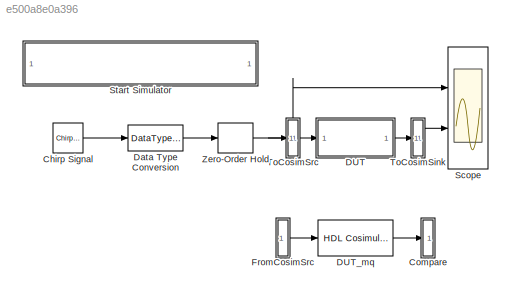
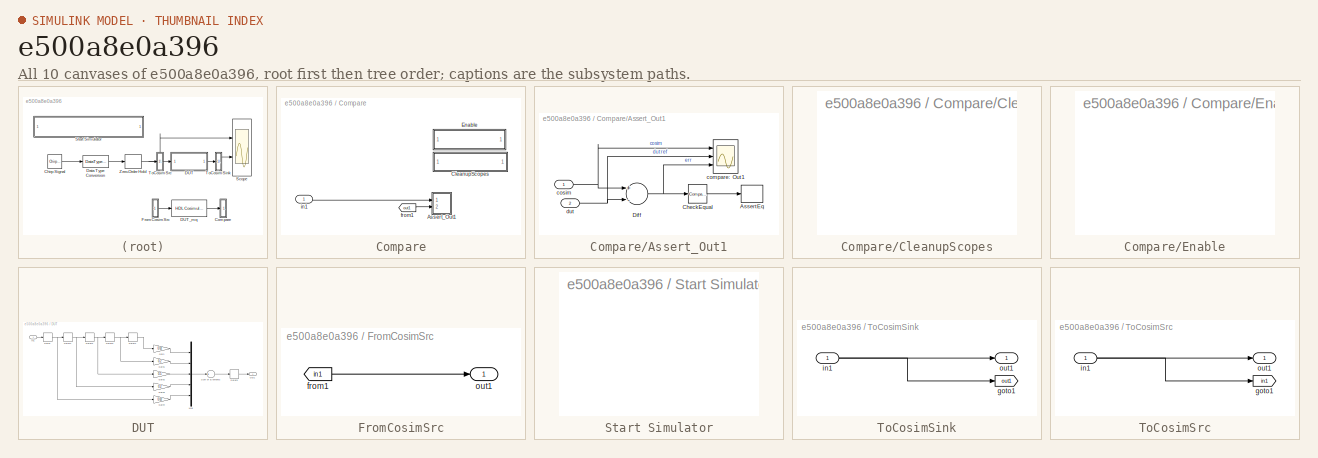
[diagram: thumbnail index - all 10 canvases of the model, root first then tree order]
MODEL slx_e500a8e0a396
KIND model
CONFIG AbsTol = auto
CONFIG FixedStep = auto
CONFIG MaxStep = auto
CONFIG MinStep = auto
CONFIG RelTol = 1e-3
CONFIG SampleTimeConstraint = Unconstrained
CONFIG Solver = ode45
CONFIG SolverMode = Auto
CONFIG SolverName = ode45
CONFIG StartTime = 0.0
CONFIG StopTime = 10.0
BLOCK [Reference] Chirp Signal  REF=simulink/Sources/Chirp Signal
  Ports = [0, 1]
  SourceBlock = simulink/Sources/Chirp Signal
  SourceType = chirp
BLOCK [SubSystem] Compare
  Ports = [1]
  RequestExecContextInheritance = off
  Variant = off
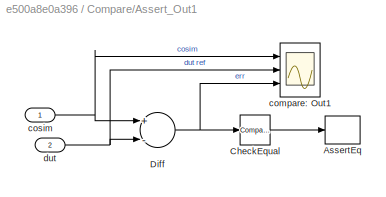
BLOCK [SubSystem] Compare/Assert_Out1
  Ports = [2]
  RequestExecContextInheritance = off
  Variant = off
BLOCK [Assertion] Compare/Assert_Out1/AssertEq
  StopWhenAssertionFail = off
BLOCK [Reference] Compare/Assert_Out1/CheckEqual  REF=simulink/Logic and Bit
Operations/Compare
To Zero
  Ports = [1, 1]
  SourceBlock = simulink/Logic and Bit\nOperations/Compare\nTo Zero
  SourceType = Compare To Zero
BLOCK [Sum] Compare/Assert_Out1/Diff
  InputSameDT = off
  Inputs = +-
  OutDataTypeStr = Inherit: Inherit via internal rule
  Ports = [2, 1]
  SaturateOnIntegerOverflow = off
BLOCK [Scope] Compare/Assert_Out1/compare: Out1
  NumInputPorts = 3
  Ports = [3]
  ScopeSpecificationString = Simulink.scopes.TimeScopeBlockCfg('CurrentConfiguration', extmgr.ConfigurationSet(extmgr.Configuration('Core','General UI',true),extmgr.Configuration('Core','Source UI',true),extmgr.Configuration('Sources','WiredSimulink',true,'DataLoggingSaveFormat','StructureWithTime','DataLoggingDecimation','1','DataLoggingDecimateData',true),extmgr.Configuration('Visuals','Time Domain',true,'SerializedDisplays...<+2985ch>
BLOCK [Inport] Compare/Assert_Out1/cosim
  IconDisplay = Port number
BLOCK [Inport] Compare/Assert_Out1/dut
  IconDisplay = Port number
  Port = 2
BLOCK [SubSystem] Compare/CleanupScopes
  OpenFcn = blkName = gcb;\nidx = regexp(blkName, '/CleanupScopes$', 'once');\nblkParent = blkName(1:idx-1);\nblks=find_system(blkParent, 'blocktype', 'Scope');\ne = get_param(blks{1}, 'Open');\nif strcmp(e, 'on'), f= 'off'; else f = 'on'; end\nfor ii=1:length(blks), set_param(blks{ii}, 'Open', f); end; drawnow;
  Ports = []
  RequestExecContextInheritance = off
  Variant = off
BLOCK [SubSystem] Compare/Enable
  OpenFcn = blkName = gcb;\nidx = regexp(blkName, '/Enable$', 'once');\nblkParent = blkName(1:idx-1);\nblks=find_system(blkParent, 'blocktype', 'Assertion');\ne = get_param(blks{1}, 'Enabled');\nif strcmp(e, 'on'), f= 'off';, else, f = 'on';, end\nfor ii=1:length(blks), set_param(blks{ii}, 'Enabled', f);, end\ndispMsg = sprintf('disp([''Double click to turn %s \\n all Assertions''])', upper(e));\nset_param(gcb, 'Mask...<+19ch>
  Ports = []
  RequestExecContextInheritance = off
  Variant = off
BLOCK [From] Compare/from1
  GotoTag = out1
  TagVisibility = global
BLOCK [Inport] Compare/in1
  IconDisplay = Port number
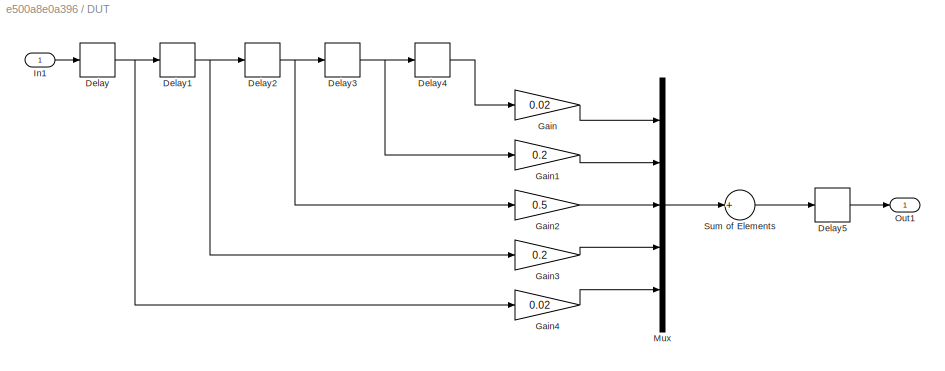
BLOCK [SubSystem] DUT
  Ports = [1, 1]
  RequestExecContextInheritance = off
  Variant = off
BLOCK [Delay] DUT/Delay
  DelayLength = 1
  InputPortMap = u0
  Ports = [1, 1]
BLOCK [Delay] DUT/Delay1
  DelayLength = 1
  InputPortMap = u0
  Ports = [1, 1]
BLOCK [Delay] DUT/Delay2
  DelayLength = 1
  InputPortMap = u0
  Ports = [1, 1]
BLOCK [Delay] DUT/Delay3
  DelayLength = 1
  InputPortMap = u0
  Ports = [1, 1]
BLOCK [Delay] DUT/Delay4
  DelayLength = 1
  InputPortMap = u0
  Ports = [1, 1]
BLOCK [Delay] DUT/Delay5
  DelayLength = 1
  InputPortMap = u0
  Ports = [1, 1]
BLOCK [Gain] DUT/Gain
  Gain = 0.02
  ParamDataTypeStr = Inherit: Inherit via internal rule
  SaturateOnIntegerOverflow = off
BLOCK [Gain] DUT/Gain1
  Gain = 0.2
  ParamDataTypeStr = Inherit: Inherit via internal rule
  SaturateOnIntegerOverflow = off
BLOCK [Gain] DUT/Gain2
  Gain = 0.5
  ParamDataTypeStr = Inherit: Inherit via internal rule
  SaturateOnIntegerOverflow = off
BLOCK [Gain] DUT/Gain3
  Gain = 0.2
  ParamDataTypeStr = Inherit: Inherit via internal rule
  SaturateOnIntegerOverflow = off
BLOCK [Gain] DUT/Gain4
  Gain = 0.02
  ParamDataTypeStr = Inherit: Inherit via internal rule
  SaturateOnIntegerOverflow = off
BLOCK [Inport] DUT/In1
  IconDisplay = Port number
BLOCK [Mux] DUT/Mux
  DisplayOption = bar
  Inputs = 5
  Ports = [5, 1]
BLOCK [Outport] DUT/Out1
  IconDisplay = Port number
BLOCK [Sum] DUT/Sum of Elements
  InputSameDT = off
  Inputs = +
  OutDataTypeStr = Inherit: Inherit via internal rule
  Ports = [1, 1]
  SaturateOnIntegerOverflow = off
BLOCK [Reference] DUT_mq  REF=modelsimlib/HDL Cosimulation
  Ports = [1, 1]
  SourceBlock = modelsimlib/HDL Cosimulation
  SourceType = Simulink and ModelSim Cosimulation
BLOCK [DataTypeConversion] Data Type Conversion
  OutDataTypeStr = fixdt(1,16,14)
  RndMeth = Nearest
  SaturateOnIntegerOverflow = off
BLOCK [SubSystem] FromCosimSrc
  Ports = [0, 1]
  RequestExecContextInheritance = off
  Variant = off
BLOCK [From] FromCosimSrc/from1
  GotoTag = in1
BLOCK [Outport] FromCosimSrc/out1
  IconDisplay = Port number
BLOCK [Scope] Scope
  NumInputPorts = 2
  Ports = [2]
  ScopeSpecificationString = C++SS(StrPVP('Location','[1001, 91, 1675, 777]'),StrPVP('Open','off'),StrPVP('ZoomMode','yonly'),MxPVP('AxesTitles',24,'struct(''axes1'',''%<SignalLabel>'',''axes2'',''%<SignalLabel>'')'),MxPVP('ScopeGraphics',28,'struct(''FigureColor'',''[0.5 0.5 0.5]'',''AxesColor'',''[0 0 0]'',''AxesTickColor'',''[1 1 1]'',''LineColors'',''[1 1 0;1 0 1;0 1 1;1 0 0;0 1 0;0 0 1]'',''LineStyles'',''-|-|-|-|-|-'','...<+338ch>
BLOCK [SubSystem] Start Simulator
  OpenFcn = try\n   cosimDirName = pwd;\n   cd 'hdlsrc\cosim_fir';\n   vsim('tclstart',gm_cosim_fir_mq_tcl);\n   cd (cosimDirName);\n   clear cosimDirName;\ncatch me\n   disp('Failed to launch cosimulator with "vsim"');\n   disp (me.message);\n   cd (cosimDirName);\n   clear cosimDirName;\nend
  Ports = []
  RequestExecContextInheritance = off
  Variant = off
BLOCK [SubSystem] ToCosimSink
  Ports = [1, 1]
  RequestExecContextInheritance = off
  Variant = off
BLOCK [Goto] ToCosimSink/goto1
  GotoTag = out1
  TagVisibility = global
BLOCK [Inport] ToCosimSink/in1
  IconDisplay = Port number
BLOCK [Outport] ToCosimSink/out1
  IconDisplay = Port number
BLOCK [SubSystem] ToCosimSrc
  Ports = [1, 1]
  RequestExecContextInheritance = off
  Variant = off
BLOCK [Goto] ToCosimSrc/goto1
  GotoTag = in1
  TagVisibility = global
BLOCK [Inport] ToCosimSrc/in1
  IconDisplay = Port number
BLOCK [Outport] ToCosimSrc/out1
  IconDisplay = Port number
BLOCK [ZeroOrderHold] Zero-Order Hold
  SampleTime = 1/1000
LINE Chirp Signal:1 -> Data Type Conversion:1
LINE Compare/Assert_Out1/CheckEqual:1 -> Compare/Assert_Out1/AssertEq:1
NET Compare/Assert_Out1/Diff:1 -> Compare/Assert_Out1/CheckEqual:1, Compare/Assert_Out1/compare: Out1:3
NET Compare/Assert_Out1/cosim:1 -> Compare/Assert_Out1/Diff:1, Compare/Assert_Out1/compare: Out1:1
NET Compare/Assert_Out1/dut:1 -> Compare/Assert_Out1/Diff:2, Compare/Assert_Out1/compare: Out1:2
LINE Compare/from1:1 -> Compare/Assert_Out1:2
LINE Compare/in1:1 -> Compare/Assert_Out1:1
NET DUT/Delay1:1 -> DUT/Delay2:1, DUT/Gain3:1
NET DUT/Delay2:1 -> DUT/Delay3:1, DUT/Gain2:1
NET DUT/Delay3:1 -> DUT/Delay4:1, DUT/Gain1:1
LINE DUT/Delay4:1 -> DUT/Gain:1
LINE DUT/Delay5:1 -> DUT/Out1:1
NET DUT/Delay:1 -> DUT/Delay1:1, DUT/Gain4:1
LINE DUT/Gain1:1 -> DUT/Mux:2
LINE DUT/Gain2:1 -> DUT/Mux:3
LINE DUT/Gain3:1 -> DUT/Mux:4
LINE DUT/Gain4:1 -> DUT/Mux:5
LINE DUT/Gain:1 -> DUT/Mux:1
LINE DUT/In1:1 -> DUT/Delay:1
LINE DUT/Mux:1 -> DUT/Sum of Elements:1
LINE DUT/Sum of Elements:1 -> DUT/Delay5:1
LINE DUT:1 -> ToCosimSink:1
LINE DUT_mq:1 -> Compare:1
LINE Data Type Conversion:1 -> Zero-Order Hold:1
LINE FromCosimSrc/from1:1 -> FromCosimSrc/out1:1
LINE FromCosimSrc:1 -> DUT_mq:1
NET ToCosimSink/in1:1 -> ToCosimSink/goto1:1, ToCosimSink/out1:1
LINE ToCosimSink:1 -> Scope:2
NET ToCosimSrc/in1:1 -> ToCosimSrc/goto1:1, ToCosimSrc/out1:1
LINE ToCosimSrc:1 -> DUT:1
NET Zero-Order Hold:1 -> Scope:1, ToCosimSrc:1
note: NET lines group one-source signal fan-out (src -> all destinations, sorted); 1:1 wires keep LINE
